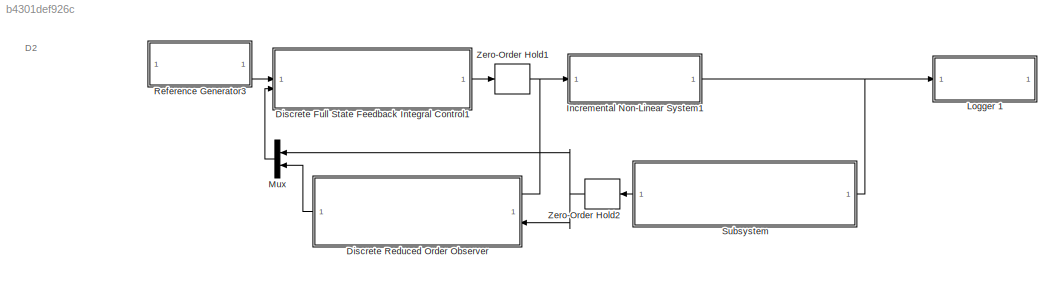
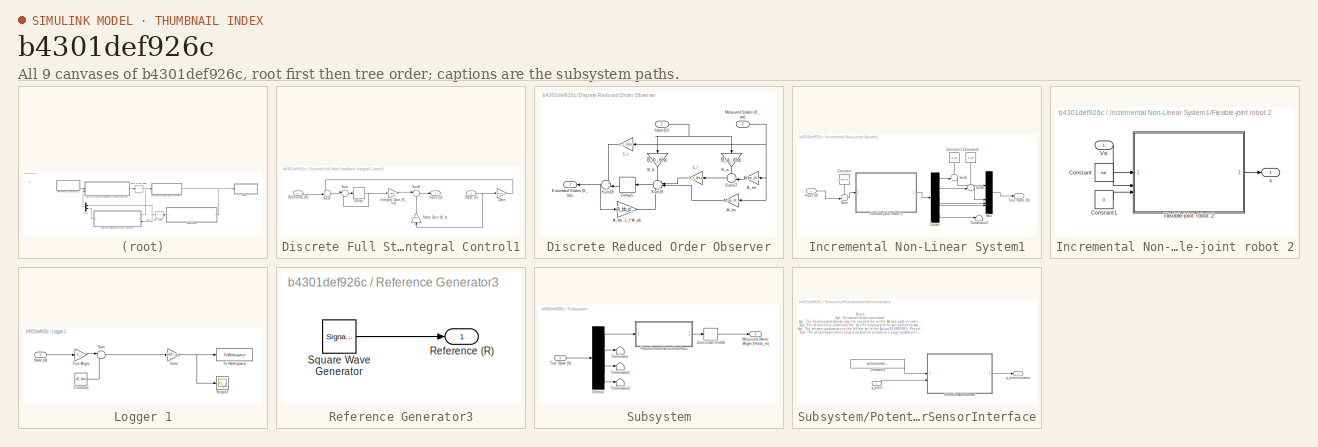
[diagram: thumbnail index - all 9 canvases of the model, root first then tree order]
MODEL slx_b4301def926c
KIND model
CONFIG AbsTol = auto
CONFIG EnableMultiTasking = off
CONFIG FixedStep = auto
CONFIG MaxStep = auto
CONFIG MinStep = auto
CONFIG RelTol = 1e-3
CONFIG SampleTimeConstraint = Unconstrained
CONFIG SolverName = VariableStepAuto
CONFIG StartTime = 0.0
CONFIG StopTime = 21
BLOCK [SubSystem] Discrete Full State Feedback Integral Control1
BLOCK [Delay] Discrete Full State Feedback Integral Control1/Delay
  DelayLength = 1
  InputPortMap = u0
  SampleTime = min_sampling_time
BLOCK [Gain] Discrete Full State Feedback Integral Control1/Gain
  Gain = [0 1 0 0]
  Multiplication = Matrix(K*u)
BLOCK [Outport] Discrete Full State Feedback Integral Control1/Input (U)
BLOCK [Gain] Discrete Full State Feedback Integral Control1/Integral Gain (K_int)
  Gain = K_disc_int
BLOCK [Inport] Discrete Full State Feedback Integral Control1/Reference (R)
BLOCK [Inport] Discrete Full State Feedback Integral Control1/State (X)
  Port = 2
BLOCK [Gain] Discrete Full State Feedback Integral Control1/State Gain (K_x)
  Gain = K_disc_x
  Multiplication = Matrix(K*u)
  NameLocation = right
BLOCK [Sum] Discrete Full State Feedback Integral Control1/Sum
  Inputs = |++
BLOCK [Sum] Discrete Full State Feedback Integral Control1/Sum7
  Inputs = -+|
BLOCK [Sum] Discrete Full State Feedback Integral Control1/Sum9
  Inputs = |+-
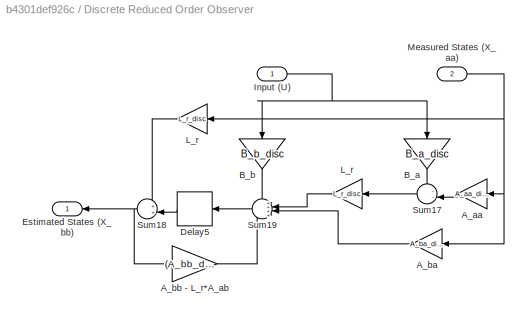
BLOCK [SubSystem] Discrete Reduced Order Observer
  NameLocation = top
BLOCK [Gain] Discrete Reduced Order Observer/A_aa
  Gain = A_aa_disc
  Multiplication = Matrix(K*u)
  NameLocation = top
BLOCK [Gain] Discrete Reduced Order Observer/A_ba
  Gain = A_ba_disc
  Multiplication = Matrix(K*u)
  NameLocation = top
BLOCK [Gain] Discrete Reduced Order Observer/A_bb - L_r*A_ab
  Gain = (A_bb_disc - L_r_disc*A_ab_disc)
  Multiplication = Matrix(K*u)
BLOCK [Gain] Discrete Reduced Order Observer/B_a
  Gain = B_a_disc
  Multiplication = Matrix(K*u)
  NameLocation = left
BLOCK [Gain] Discrete Reduced Order Observer/B_b
  Gain = B_b_disc
  Multiplication = Matrix(K*u)
  NameLocation = left
BLOCK [Delay] Discrete Reduced Order Observer/Delay5
  DelayLength = 1
  InputPortMap = u0
  NameLocation = top
  SampleTime = min_sampling_time
BLOCK [Outport] Discrete Reduced Order Observer/Estimated States (X_bb)
  NameLocation = top
BLOCK [Inport] Discrete Reduced Order Observer/Input (U)
BLOCK [Gain] Discrete Reduced Order Observer/L_r
  Gain = L_r_disc
  Multiplication = Matrix(K*u)
  NameLocation = top
BLOCK [Gain] Discrete Reduced Order Observer/L_r 
  Gain = L_r_disc
  Multiplication = Matrix(K*u)
  NameLocation = top
BLOCK [Inport] Discrete Reduced Order Observer/Measured States (X_aa)
  Port = 2
BLOCK [Sum] Discrete Reduced Order Observer/Sum17
  Inputs = --|
  NameLocation = top
BLOCK [Sum] Discrete Reduced Order Observer/Sum18
  Inputs = ++|
  NameLocation = top
BLOCK [Sum] Discrete Reduced Order Observer/Sum19
  Inputs = ++++
  NameLocation = top
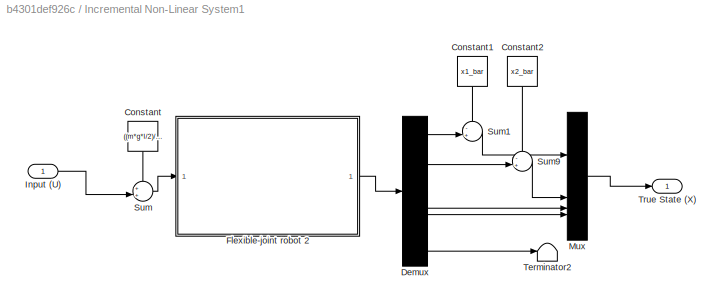
BLOCK [SubSystem] Incremental Non-Linear System1
BLOCK [Constant] Incremental Non-Linear System1/Constant
  NameLocation = left
  Value = ((m*g*l/2)/K_m + I_noload)*R
BLOCK [Constant] Incremental Non-Linear System1/Constant1
  NameLocation = left
  Value = x1_bar
BLOCK [Constant] Incremental Non-Linear System1/Constant2
  NameLocation = left
  Value = x2_bar
BLOCK [Demux] Incremental Non-Linear System1/Demux
  Outputs = 5
BLOCK [SubSystem] Incremental Non-Linear System1/Flexible-joint robot 2
BLOCK [Constant] Incremental Non-Linear System1/Flexible-joint robot 2/Constant
  Value = init
BLOCK [Constant] Incremental Non-Linear System1/Flexible-joint robot 2/Constant1
  Value = 0
BLOCK [ModelReference] Incremental Non-Linear System1/Flexible-joint robot 2/Flexible-joint robot 2
  CopyOfModelProtected = on
  ModelNameDialog = Flexible_joint_robot_2
  ModelReferenceVersion = 1.65
BLOCK [Inport] Incremental Non-Linear System1/Flexible-joint robot 2/Va
BLOCK [Outport] Incremental Non-Linear System1/Flexible-joint robot 2/x
BLOCK [Inport] Incremental Non-Linear System1/Input (U)
BLOCK [Mux] Incremental Non-Linear System1/Mux
  DisplayOption = bar
BLOCK [Sum] Incremental Non-Linear System1/Sum
  Inputs = ++|
BLOCK [Sum] Incremental Non-Linear System1/Sum1
  Inputs = -+|
BLOCK [Sum] Incremental Non-Linear System1/Sum9
  Inputs = -+|
BLOCK [Terminator] Incremental Non-Linear System1/Terminator2
BLOCK [Outport] Incremental Non-Linear System1/True State (X)
BLOCK [SubSystem] Logger 1
BLOCK [Constant] Logger 1/Constant
  Value = x2_bar
BLOCK [Gain] Logger 1/Gain
  Gain = 180 / pi
BLOCK [Scope] Logger 1/Scope2
  Floating = off
  NumInputPorts = 1
  ScopeSpecificationString = Simulink.scopes.TimeScopeBlockCfg('CurrentConfiguration', extmgr.ConfigurationSet(extmgr.Configuration('Core','General UI',true),extmgr.Configuration('Core','Source UI',true),extmgr.Configuration('Sources','WiredSimulink',true,'DataLoggingVariableName','ScopeData5'),extmgr.Configuration('Visuals','Time Domain',true,'SerializedDisplays',{struct('MinYLimReal','4.07075','MaxYLimReal','56.47558','YLab...<+1691ch>
BLOCK [Inport] Logger 1/State (X)
BLOCK [Sum] Logger 1/Sum
  Inputs = |++
BLOCK [ToWorkspace] Logger 1/To Workspace
  FixptAsFi = on
  MaxDataPoints = inf
  SampleTime = -1
  SaveFormat = Timeseries
  VariableName = link_angle
BLOCK [Gain] Logger 1/True Angle
  Gain = C_l
  Multiplication = Matrix(K*u)
BLOCK [Mux] Mux
  DisplayOption = bar
  Inputs = 2
  NameLocation = top
BLOCK [SubSystem] Reference Generator3
BLOCK [Outport] Reference Generator3/Reference (R)
BLOCK [SignalGenerator] Reference Generator3/Square Wave Generator
  Amplitude = wave_amplitude
  Frequency = 1 / wave_period
  WaveForm = square
BLOCK [SubSystem] Subsystem
  NameLocation = top
BLOCK [Demux] Subsystem/Demux
BLOCK [Outport] Subsystem/Measured Motor Angle (\theta_m)
BLOCK [SubSystem] Subsystem/PotentiometerSensorInterface
  TreatAsAtomicUnit = on
BLOCK [Constant] Subsystem/PotentiometerSensorInterface/Constant3
  Value = potentiometer_linearity_percent
BLOCK [ModelReference] Subsystem/PotentiometerSensorInterface/PotentiometerSensor
  CopyOfModelProtected = on
  ModelNameDialog = PotentiometerSensor.slxp
  ModelReferenceVersion = 1.21
BLOCK [Inport] Subsystem/PotentiometerSensorInterface/y_plant
BLOCK [Outport] Subsystem/PotentiometerSensorInterface/y_potentiometer
BLOCK [Terminator] Subsystem/Terminator
BLOCK [Terminator] Subsystem/Terminator1
BLOCK [Terminator] Subsystem/Terminator2
BLOCK [Inport] Subsystem/True State (X)
BLOCK [ZeroOrderHold] Subsystem/Zero-Order Hold6
  SampleTime = min_sampling_time
BLOCK [ZeroOrderHold] Zero-Order Hold1
  SampleTime = min_sampling_time
BLOCK [ZeroOrderHold] Zero-Order Hold2
  NameLocation = top
  SampleTime = min_sampling_time
ANNOTATION (root): D2
ANNOTATION Subsystem/PotentiometerSensorInterface: Notes: > This sensor block is protected. > The PotentiometerSensor.slxp file needs to be on the Matlab path in order to simulate this sensor. > You should have download the .slpx file appropriate for you operating system {Windows, Mac, Linux}. > The constant parameters on the left are set in the " ELEN90064_Project_Parameters.m " script. > The sensors appendix in project description provides a 1-p...<+188ch>
NET Discrete Full State Feedback Integral Control1/Delay:1 -> Discrete Full State Feedback Integral Control1/Integral Gain (K_int):1, Discrete Full State Feedback Integral Control1/Sum:2
LINE Discrete Full State Feedback Integral Control1/Gain:1 -> Discrete Full State Feedback Integral Control1/Sum7:1
LINE Discrete Full State Feedback Integral Control1/Integral Gain (K_int):1 -> Discrete Full State Feedback Integral Control1/Sum9:1
LINE Discrete Full State Feedback Integral Control1/Reference (R):1 -> Discrete Full State Feedback Integral Control1/Sum7:2
NET Discrete Full State Feedback Integral Control1/State (X):1 -> Discrete Full State Feedback Integral Control1/Gain:1, Discrete Full State Feedback Integral Control1/State Gain (K_x):1
LINE Discrete Full State Feedback Integral Control1/State Gain (K_x):1 -> Discrete Full State Feedback Integral Control1/Sum9:2
LINE Discrete Full State Feedback Integral Control1/Sum7:1 -> Discrete Full State Feedback Integral Control1/Sum:1
LINE Discrete Full State Feedback Integral Control1/Sum9:1 -> Discrete Full State Feedback Integral Control1/Input (U):1
LINE Discrete Full State Feedback Integral Control1/Sum:1 -> Discrete Full State Feedback Integral Control1/Delay:1
LINE Discrete Full State Feedback Integral Control1:1 -> Zero-Order Hold1:1
LINE Discrete Reduced Order Observer/A_aa:1 -> Discrete Reduced Order Observer/Sum17:2
LINE Discrete Reduced Order Observer/A_ba:1 -> Discrete Reduced Order Observer/Sum19:3
LINE Discrete Reduced Order Observer/A_bb - L_r*A_ab:1 -> Discrete Reduced Order Observer/Sum19:4
LINE Discrete Reduced Order Observer/B_a:1 -> Discrete Reduced Order Observer/Sum17:1
LINE Discrete Reduced Order Observer/B_b:1 -> Discrete Reduced Order Observer/Sum19:1
LINE Discrete Reduced Order Observer/Delay5:1 -> Discrete Reduced Order Observer/Sum18:2
NET Discrete Reduced Order Observer/Input (U):1 -> Discrete Reduced Order Observer/B_a:1, Discrete Reduced Order Observer/B_b:1
LINE Discrete Reduced Order Observer/L_r :1 -> Discrete Reduced Order Observer/Sum19:2
LINE Discrete Reduced Order Observer/L_r:1 -> Discrete Reduced Order Observer/Sum18:1
NET Discrete Reduced Order Observer/Measured States (X_aa):1 -> Discrete Reduced Order Observer/A_aa:1, Discrete Reduced Order Observer/A_ba:1, Discrete Reduced Order Observer/L_r:1
LINE Discrete Reduced Order Observer/Sum17:1 -> Discrete Reduced Order Observer/L_r :1
NET Discrete Reduced Order Observer/Sum18:1 -> Discrete Reduced Order Observer/A_bb - L_r*A_ab:1, Discrete Reduced Order Observer/Estimated States (X_bb):1
LINE Discrete Reduced Order Observer/Sum19:1 -> Discrete Reduced Order Observer/Delay5:1
LINE Discrete Reduced Order Observer:1 -> Mux:2
LINE Incremental Non-Linear System1/Constant1:1 -> Incremental Non-Linear System1/Sum1:1
LINE Incremental Non-Linear System1/Constant2:1 -> Incremental Non-Linear System1/Sum9:1
LINE Incremental Non-Linear System1/Constant:1 -> Incremental Non-Linear System1/Sum:1
LINE Incremental Non-Linear System1/Demux:1 -> Incremental Non-Linear System1/Sum1:2
LINE Incremental Non-Linear System1/Demux:2 -> Incremental Non-Linear System1/Sum9:2
LINE Incremental Non-Linear System1/Demux:3 -> Incremental Non-Linear System1/Mux:3
LINE Incremental Non-Linear System1/Demux:4 -> Incremental Non-Linear System1/Mux:4
LINE Incremental Non-Linear System1/Demux:5 -> Incremental Non-Linear System1/Terminator2:1
LINE Incremental Non-Linear System1/Flexible-joint robot 2/Constant1:1 -> Incremental Non-Linear System1/Flexible-joint robot 2/Flexible-joint robot 2:3
LINE Incremental Non-Linear System1/Flexible-joint robot 2/Constant:1 -> Incremental Non-Linear System1/Flexible-joint robot 2/Flexible-joint robot 2:2
LINE Incremental Non-Linear System1/Flexible-joint robot 2/Flexible-joint robot 2:1 -> Incremental Non-Linear System1/Flexible-joint robot 2/x:1
LINE Incremental Non-Linear System1/Flexible-joint robot 2/Va:1 -> Incremental Non-Linear System1/Flexible-joint robot 2/Flexible-joint robot 2:1
LINE Incremental Non-Linear System1/Flexible-joint robot 2:1 -> Incremental Non-Linear System1/Demux:1
LINE Incremental Non-Linear System1/Input (U):1 -> Incremental Non-Linear System1/Sum:2
LINE Incremental Non-Linear System1/Mux:1 -> Incremental Non-Linear System1/True State (X):1
LINE Incremental Non-Linear System1/Sum1:1 -> Incremental Non-Linear System1/Mux:1
LINE Incremental Non-Linear System1/Sum9:1 -> Incremental Non-Linear System1/Mux:2
LINE Incremental Non-Linear System1/Sum:1 -> Incremental Non-Linear System1/Flexible-joint robot 2:1
NET Incremental Non-Linear System1:1 -> Logger 1:1, Subsystem:1
LINE Logger 1/Constant:1 -> Logger 1/Sum:2
NET Logger 1/Gain:1 -> Logger 1/Scope2:1, Logger 1/To Workspace:1
LINE Logger 1/State (X):1 -> Logger 1/True Angle:1
LINE Logger 1/Sum:1 -> Logger 1/Gain:1
LINE Logger 1/True Angle:1 -> Logger 1/Sum:1
LINE Mux:1 -> Discrete Full State Feedback Integral Control1:2
LINE Reference Generator3/Square Wave Generator:1 -> Reference Generator3/Reference (R):1
LINE Reference Generator3:1 -> Discrete Full State Feedback Integral Control1:1
LINE Subsystem/Demux:1 -> Subsystem/PotentiometerSensorInterface:1
LINE Subsystem/Demux:2 -> Subsystem/Terminator:1
LINE Subsystem/Demux:3 -> Subsystem/Terminator1:1
LINE Subsystem/Demux:4 -> Subsystem/Terminator2:1
LINE Subsystem/PotentiometerSensorInterface/Constant3:1 -> Subsystem/PotentiometerSensorInterface/PotentiometerSensor:1
LINE Subsystem/PotentiometerSensorInterface/PotentiometerSensor:1 -> Subsystem/PotentiometerSensorInterface/y_potentiometer:1
LINE Subsystem/PotentiometerSensorInterface/y_plant:1 -> Subsystem/PotentiometerSensorInterface/PotentiometerSensor:2
LINE Subsystem/PotentiometerSensorInterface:1 -> Subsystem/Zero-Order Hold6:1
LINE Subsystem/True State (X):1 -> Subsystem/Demux:1
LINE Subsystem/Zero-Order Hold6:1 -> Subsystem/Measured Motor Angle (\theta_m):1
LINE Subsystem:1 -> Zero-Order Hold2:1
NET Zero-Order Hold1:1 -> Discrete Reduced Order Observer:1, Incremental Non-Linear System1:1
NET Zero-Order Hold2:1 -> Discrete Reduced Order Observer:2, Mux:1
note: NET lines group one-source signal fan-out (src -> all destinations, sorted); 1:1 wires keep LINE
